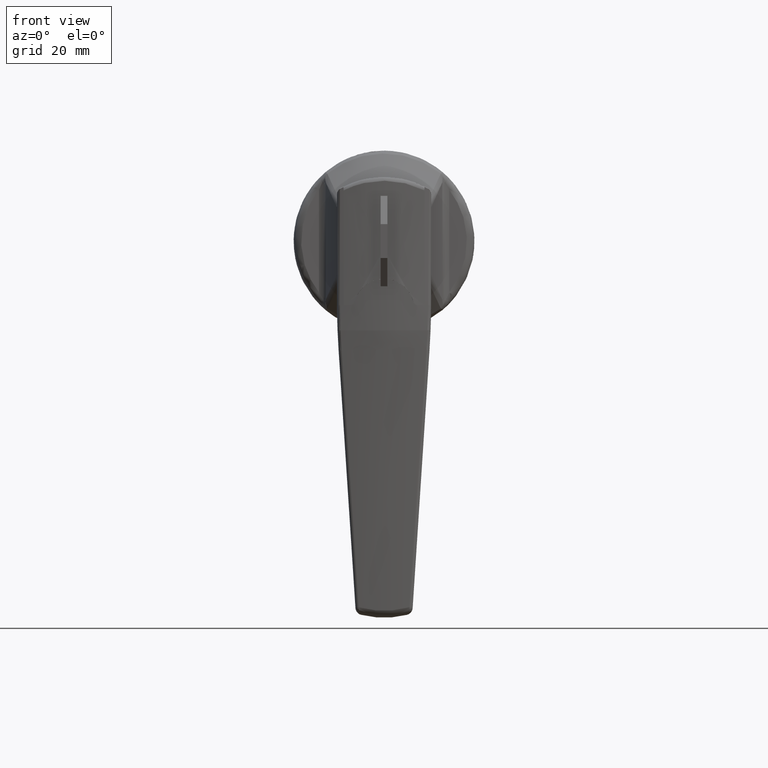
[diagram: clean part render]
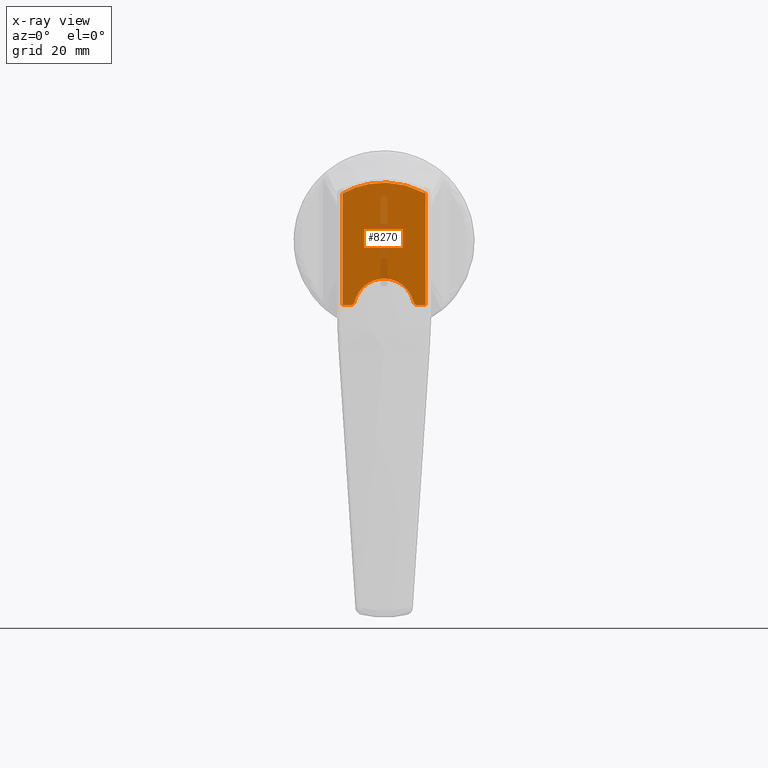
[diagram: x-ray — body ghosted, one internal face saturated and labeled with its STEP entity id]
A machine part, front view, then the same camera in x-ray: the body is ghosted and one INTERNAL B-rep face — a face not visible from any outside direction — is saturated and labeled: STEP entity #8270.
In plain terms, the highlighted face is a freeform B-spline surface patch.
Its self-contained STEP definition (entity closure, byte-faithful):
#8117=CARTESIAN_POINT('',(-50.200000000000003,-11.0,12.627786426390520));
#8118=VERTEX_POINT('',#8117);
#8119=CARTESIAN_POINT('',(-50.200000000000003,-11.0,-17.0));
#8120=VERTEX_POINT('',#8119);
#8121=CARTESIAN_POINT('',(-50.200000000000003,-11.0,12.627786426390520));
#8122=CARTESIAN_POINT('',(-50.200000000000003,-11.0,-17.0));
#8123=QUASI_UNIFORM_CURVE('',1,(#8121,#8122),.UNSPECIFIED.,.F.,.U.);
#8124=EDGE_CURVE('',#8118,#8120,#8123,.T.);
#8156=CARTESIAN_POINT('',(-50.200000000000003,11.0,12.627786426390520));
#8157=VERTEX_POINT('',#8156);
#8163=CARTESIAN_POINT('',(-50.200000000000003,-11.0,12.627786426390520));
#8164=CARTESIAN_POINT('',(-50.200000000000003,0.0,18.792516231953794));
#8165=CARTESIAN_POINT('',(-50.200000000000003,11.0,12.627786426390530));
#8173=(BOUNDED_CURVE()B_SPLINE_CURVE(2,(#8163,#8164,#8165),.UNSPECIFIED.,.F.,.U.)CURVE()GEOMETRIC_REPRESENTATION_ITEM()QUASI_UNIFORM_CURVE()RATIONAL_B_SPLINE_CURVE((1.0,0.872346063395135,1.0))REPRESENTATION_ITEM(''));
#8174=EDGE_CURVE('',#8118,#8157,#8173,.T.);
#8184=CARTESIAN_POINT('',(-50.200000000000003,11.0,-17.0));
#8185=VERTEX_POINT('',#8184);
#8186=CARTESIAN_POINT('',(-50.200000000000003,11.0,-17.0));
#8187=CARTESIAN_POINT('',(-50.200000000000003,11.0,12.627786426390520));
#8188=QUASI_UNIFORM_CURVE('',1,(#8186,#8187),.UNSPECIFIED.,.F.,.U.);
#8189=EDGE_CURVE('',#8185,#8157,#8188,.T.);
#8201=CARTESIAN_POINT('',(-50.200000000000003,12.098899957359730,17.123374937008620));
#8202=CARTESIAN_POINT('',(-50.200000000000003,-12.098900547445711,17.123374937008620));
#8203=CARTESIAN_POINT('',(-50.200000000000003,12.098899957359730,-18.623375808726621));
#8204=CARTESIAN_POINT('',(-50.200000000000003,-12.098900547445711,-18.623375808726621));
#8205=B_SPLINE_SURFACE_WITH_KNOTS('',1,1,((#8201,#8203),(#8202,#8204)),.UNSPECIFIED.,.F.,.F.,.U.,(2,2),(2,2),(0.0,24.197800504805439),(0.0,35.746750745735241),.UNSPECIFIED.);
#8206=ORIENTED_EDGE('',*,*,#8189,.F.);
#8207=CARTESIAN_POINT('',(-50.200000000000003,8.774964000000100,-17.0));
#8208=VERTEX_POINT('',#8207);
#8209=CARTESIAN_POINT('',(-50.200000000000003,8.774964000000100,-17.0));
#8210=CARTESIAN_POINT('',(-50.200000000000003,11.0,-17.0));
#8211=QUASI_UNIFORM_CURVE('',1,(#8209,#8210),.UNSPECIFIED.,.F.,.U.);
#8212=EDGE_CURVE('',#8208,#8185,#8211,.T.);
#8213=ORIENTED_EDGE('',*,*,#8212,.F.);
#8214=CARTESIAN_POINT('',(-50.200000000000003,7.799968356974010,-16.222222277616201));
#8215=VERTEX_POINT('',#8214);
#8216=CARTESIAN_POINT('',(-50.200000000000003,8.774964000000100,-17.0));
#8217=CARTESIAN_POINT('',(-50.200000000000017,7.977240081702230,-17.000000000000004));
#8218=CARTESIAN_POINT('',(-50.200000000000003,7.799968356974010,-16.222222277616201));
#8226=(BOUNDED_CURVE()B_SPLINE_CURVE(2,(#8216,#8217,#8218),.UNSPECIFIED.,.F.,.U.)CURVE()GEOMETRIC_REPRESENTATION_ITEM()QUASI_UNIFORM_CURVE()RATIONAL_B_SPLINE_CURVE((1.0,0.781736004528014,1.0))REPRESENTATION_ITEM(''));
#8227=EDGE_CURVE('',#8208,#8215,#8226,.T.);
#8228=ORIENTED_EDGE('',*,*,#8227,.T.);
#8229=CARTESIAN_POINT('',(-50.200000000000003,-7.799967955378230,-16.222222215298000));
#8230=VERTEX_POINT('',#8229);
#8231=CARTESIAN_POINT('',(-50.200000000000003,-7.799967955378230,-16.222222215298000));
#8232=CARTESIAN_POINT('',(-50.200000000000017,-6.381792191857548,-9.999999940169301));
#8233=CARTESIAN_POINT('',(-50.200000000000003,0.000000075001750,-9.999999999999998));
#8234=CARTESIAN_POINT('',(-50.200000000000017,6.381792341861050,-10.000000059830700));
#8235=CARTESIAN_POINT('',(-50.200000000000003,7.799968356974011,-16.222222277616201));
#8243=(BOUNDED_CURVE()B_SPLINE_CURVE(2,(#8231,#8232,#8233,#8234,#8235),.UNSPECIFIED.,.F.,.U.)B_SPLINE_CURVE_WITH_KNOTS((3,2,3),(0.0,0.500000000000000,1.0),.UNSPECIFIED.)CURVE()GEOMETRIC_REPRESENTATION_ITEM()RATIONAL_B_SPLINE_CURVE((1.0,0.781735960679428,1.0,0.781735960679428,1.0))REPRESENTATION_ITEM(''));
#8244=EDGE_CURVE('',#8230,#8215,#8243,.T.);
#8245=ORIENTED_EDGE('',*,*,#8244,.F.);
#8246=CARTESIAN_POINT('',(-50.200000000000003,-8.774963999999999,-17.0));
#8247=VERTEX_POINT('',#8246);
#8248=CARTESIAN_POINT('',(-50.200000000000003,-7.799967955378254,-16.222222215298000));
#8249=CARTESIAN_POINT('',(-50.200000000000010,-7.977239958971972,-16.999999999999996));
#8250=CARTESIAN_POINT('',(-50.200000000000003,-8.774963999999999,-17.0));
#8258=(BOUNDED_CURVE()B_SPLINE_CURVE(2,(#8248,#8249,#8250),.UNSPECIFIED.,.F.,.U.)CURVE()GEOMETRIC_REPRESENTATION_ITEM()QUASI_UNIFORM_CURVE()RATIONAL_B_SPLINE_CURVE((1.0,0.781735957756197,1.0))REPRESENTATION_ITEM(''));
#8259=EDGE_CURVE('',#8230,#8247,#8258,.T.);
#8260=ORIENTED_EDGE('',*,*,#8259,.T.);
#8261=CARTESIAN_POINT('',(-50.200000000000003,-11.0,-17.0));
#8262=CARTESIAN_POINT('',(-50.200000000000003,-8.774963999999999,-17.0));
#8263=QUASI_UNIFORM_CURVE('',1,(#8261,#8262),.UNSPECIFIED.,.F.,.U.);
#8264=EDGE_CURVE('',#8120,#8247,#8263,.T.);
#8265=ORIENTED_EDGE('',*,*,#8264,.F.);
#8266=ORIENTED_EDGE('',*,*,#8124,.F.);
#8267=ORIENTED_EDGE('',*,*,#8174,.T.);
#8268=EDGE_LOOP('',(#8206,#8213,#8228,#8245,#8260,#8265,#8266,#8267));
#8269=FACE_OUTER_BOUND('',#8268,.T.);
#8270=ADVANCED_FACE('',(#8269),#8205,.F.);